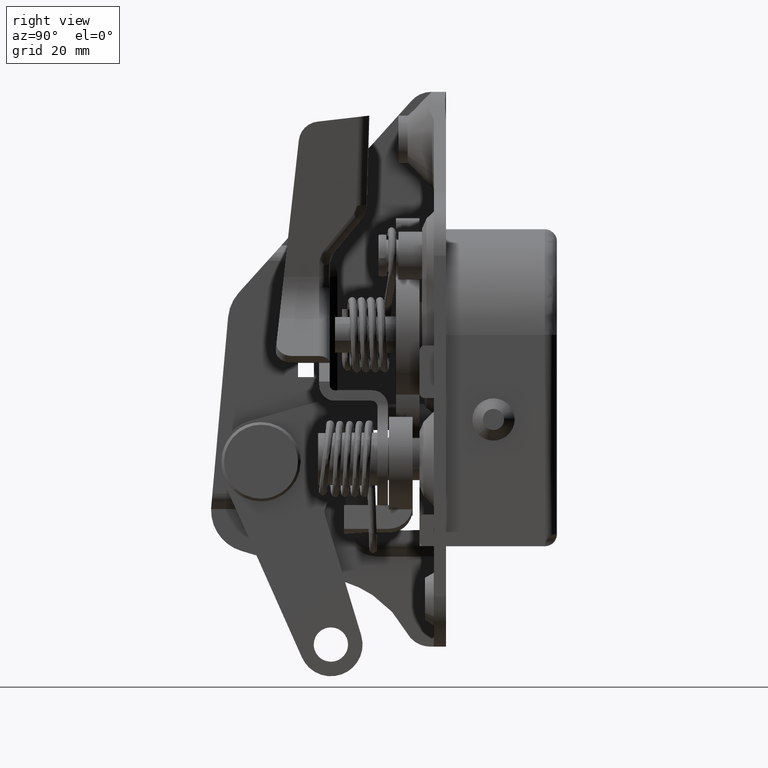
[diagram: clean part render]
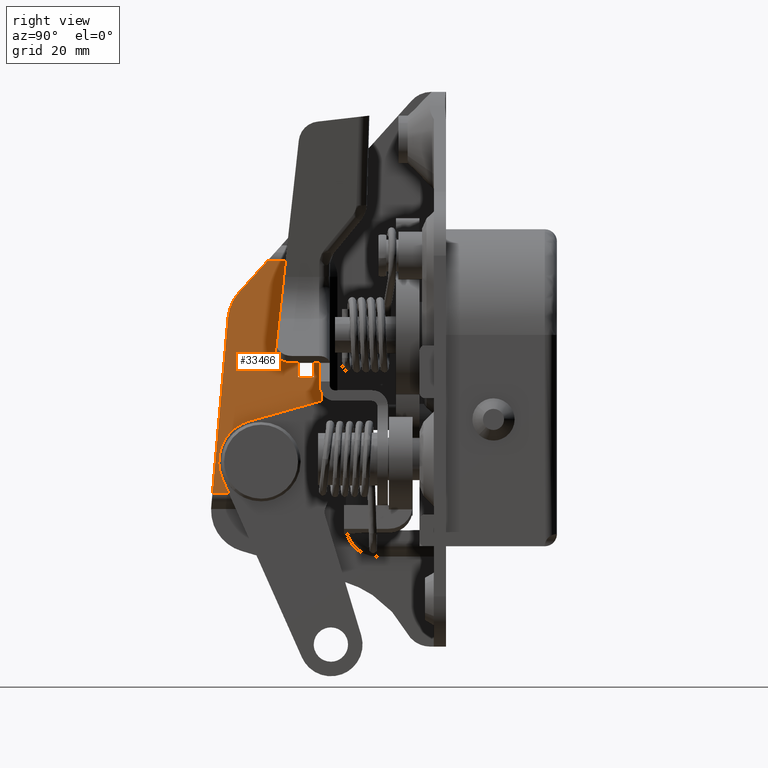
[diagram: same view with one face highlighted and labeled with its STEP entity id]
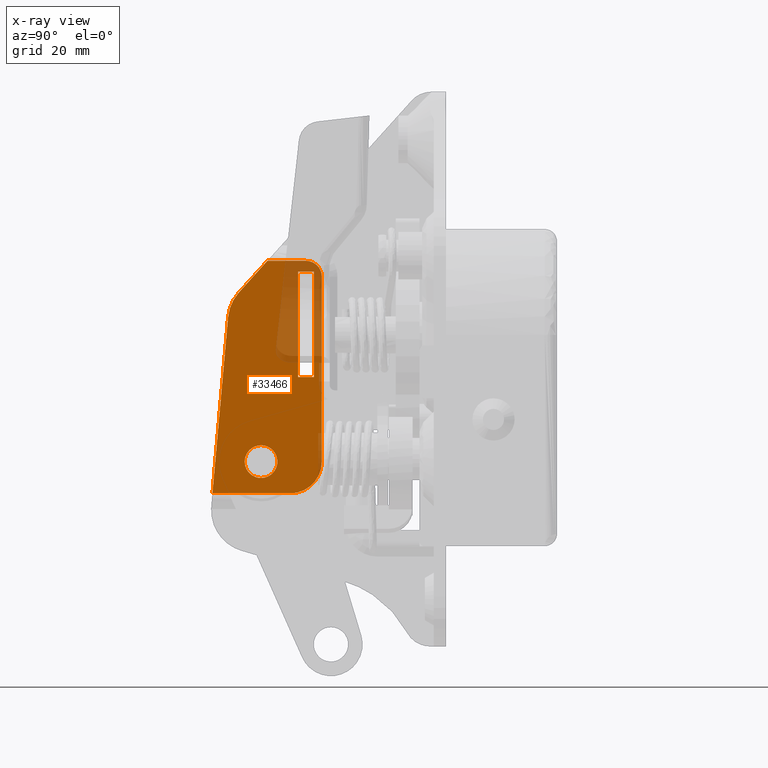
[diagram: x-ray of the same camera — body ghosted, the highlighted face saturated]
A machine part, right view. The second image highlights one B-rep face of the part: STEP entity #33466.
The next image is the same camera in x-ray: the body ghosted, the highlighted face saturated — about 15% of this face is hidden behind the body in this view.
In plain terms, the highlighted face is a freeform B-spline surface patch.
Its self-contained STEP definition (entity closure, byte-faithful):
#26775=CARTESIAN_POINT('',(4.299999999999860,0.0,3.100000000000000));
#26776=VERTEX_POINT('',#26775);
#26777=CARTESIAN_POINT('',(4.299999999993453,-2.221617631763561,2.162038961854671));
#26778=VERTEX_POINT('',#26777);
#26779=CARTESIAN_POINT('',(4.299999999999860,0.0,3.100000000000000));
#26780=CARTESIAN_POINT('',(4.299999999998756,-0.387076423366153,3.100381442423703));
#26781=CARTESIAN_POINT('',(4.299999999997020,-0.980199913207918,2.987358491877856));
#26782=CARTESIAN_POINT('',(4.299999999994924,-1.718290438299378,2.608221420082324));
#26783=CARTESIAN_POINT('',(4.299999999993906,-2.059699292661994,2.328483926916277));
#26784=CARTESIAN_POINT('',(4.299999999993453,-2.221617631763561,2.162038961854671));
#26785=B_SPLINE_CURVE_WITH_KNOTS('',3,(#26779,#26780,#26781,#26782,#26783,#26784),.UNSPECIFIED.,.F.,.U.,(4,1,1,4),(0.000000020293260,1.161060582805483,1.780292141663410,2.476928244312195),.UNSPECIFIED.);
#26786=EDGE_CURVE('',#26776,#26778,#26785,.T.);
#26846=CARTESIAN_POINT('',(4.300000000017257,-2.285560013593287,-2.094329974215530));
#26847=VERTEX_POINT('',#26846);
#26853=CARTESIAN_POINT('',(4.299999999999860,0.0,-3.100000000000000));
#26854=VERTEX_POINT('',#26853);
#26855=CARTESIAN_POINT('',(4.300000000017257,-2.285560013593287,-2.094329974215530));
#26856=CARTESIAN_POINT('',(4.300000000015198,-2.014537528808293,-2.390750969899118));
#26857=CARTESIAN_POINT('',(4.300000000011346,-1.508972197296024,-2.762140777135802));
#26858=CARTESIAN_POINT('',(4.300000000005156,-0.696010392123541,-3.046658639083731));
#26859=CARTESIAN_POINT('',(4.300000000001699,-0.240941391924423,-3.100051380337145));
#26860=CARTESIAN_POINT('',(4.299999999999860,0.0,-3.100000000000000));
#26861=B_SPLINE_CURVE_WITH_KNOTS('',3,(#26855,#26856,#26857,#26858,#26859,#26860),.UNSPECIFIED.,.F.,.U.,(4,1,1,4),(0.000000024546497,1.204720542868693,1.847237261707376,2.570069290431836),.UNSPECIFIED.);
#26862=EDGE_CURVE('',#26847,#26854,#26861,.T.);
#26864=CARTESIAN_POINT('',(4.299999999999860,3.099999999999537,0.000001694599756));
#26865=VERTEX_POINT('',#26864);
#26866=CARTESIAN_POINT('',(4.299999999999860,0.0,-3.100000000000000));
#26867=CARTESIAN_POINT('',(4.299999999999864,0.278986673213585,-3.100089965967427));
#26868=CARTESIAN_POINT('',(4.299999999999857,0.735444579930802,-3.037941316127577));
#26869=CARTESIAN_POINT('',(4.299999999999866,1.355820800187273,-2.807321876747603));
#26870=CARTESIAN_POINT('',(4.299999999999865,1.858576056279343,-2.505995032385809));
#26871=CARTESIAN_POINT('',(4.299999999999852,2.349554520247343,-2.061048590129082));
#26872=CARTESIAN_POINT('',(4.299999999999875,2.702663215842049,-1.559643599964355));
#26873=CARTESIAN_POINT('',(4.299999999999834,3.011841537300404,-0.862149879079770));
#26874=CARTESIAN_POINT('',(4.299999999999879,3.100285671755672,-0.355112203958085));
#26875=CARTESIAN_POINT('',(4.299999999999860,3.099999999999537,0.000001694599756));
#26876=B_SPLINE_CURVE_WITH_KNOTS('',3,(#26866,#26867,#26868,#26869,#26870,#26871,#26872,#26873,#26874,#26875),.UNSPECIFIED.,.F.,.U.,(4,1,1,1,1,1,1,4),(0.000000044647458,0.836946308917644,1.369578839649206,1.978279555034534,2.586966958162027,3.347832824490573,3.804374933490748,4.869591762565585),.UNSPECIFIED.);
#26877=EDGE_CURVE('',#26854,#26865,#26876,.T.);
#26879=CARTESIAN_POINT('',(4.299999999999860,3.099999999999537,0.000001694599756));
#26880=CARTESIAN_POINT('',(4.299999999999864,3.100448275662328,0.405886930059305));
#26881=CARTESIAN_POINT('',(4.299999999999854,2.978667274401713,1.014151457780510));
#26882=CARTESIAN_POINT('',(4.299999999999869,2.546193718578103,1.823353542824461));
#26883=CARTESIAN_POINT('',(4.299999999999840,2.064123536323794,2.355210484604011));
#26884=CARTESIAN_POINT('',(4.299999999999895,1.513118780123648,2.723235911701847));
#26885=CARTESIAN_POINT('',(4.299999999999813,0.862162123083817,3.011859304554319));
#26886=CARTESIAN_POINT('',(4.299999999999898,0.355108960585801,3.100278879815735));
#26887=CARTESIAN_POINT('',(4.299999999999860,0.0,3.100000000000000));
#26888=B_SPLINE_CURVE_WITH_KNOTS('',3,(#26879,#26880,#26881,#26882,#26883,#26884,#26885,#26886,#26887),.UNSPECIFIED.,.F.,.U.,(4,1,1,1,1,1,4),(0.000000046971425,1.217398276355130,1.826106752376056,2.739135808521953,3.347831511178693,3.804373440614459,4.869589852309050),.UNSPECIFIED.);
#26889=EDGE_CURVE('',#26865,#26776,#26888,.T.);
#26908=CARTESIAN_POINT('',(4.299999999999860,-3.099999999999537,-0.000001694599736));
#26909=VERTEX_POINT('',#26908);
#26910=CARTESIAN_POINT('',(4.299999999993453,-2.221617631763561,2.162038961854671));
#26911=CARTESIAN_POINT('',(4.299999999994039,-2.412892524153084,1.965621377772370));
#26912=CARTESIAN_POINT('',(4.299999999995159,-2.697723997683414,1.582125244291795));
#26913=CARTESIAN_POINT('',(4.299999999997363,-3.017146034095013,0.847280674425895));
#26914=CARTESIAN_POINT('',(4.299999999998875,-3.100190800589695,0.324028526565810));
#26915=CARTESIAN_POINT('',(4.299999999999860,-3.099999999999537,-0.000001694599736));
#26916=B_SPLINE_CURVE_WITH_KNOTS('',3,(#26910,#26911,#26912,#26913,#26914,#26915),.UNSPECIFIED.,.F.,.U.,(4,1,1,4),(0.000000031061596,0.822486579053400,1.420634753499920,2.392664033777836),.UNSPECIFIED.);
#26917=EDGE_CURVE('',#26778,#26909,#26916,.T.);
#26919=CARTESIAN_POINT('',(4.299999999999860,-3.099999999999537,-0.000001694599736));
#26920=CARTESIAN_POINT('',(4.300000000002850,-3.100257779061577,-0.359329960650999));
#26921=CARTESIAN_POINT('',(4.300000000009209,-2.965159400826793,-1.125604342997849));
#26922=CARTESIAN_POINT('',(4.300000000014761,-2.561045668548050,-1.794372189009928));
#26923=CARTESIAN_POINT('',(4.300000000017257,-2.285560013593287,-2.094329974215530));
#26924=B_SPLINE_CURVE_WITH_KNOTS('',3,(#26919,#26920,#26921,#26922,#26923),.UNSPECIFIED.,.F.,.U.,(4,1,4),(0.000000025546117,1.077905002254404,2.299521283408057),.UNSPECIFIED.);
#26925=EDGE_CURVE('',#26909,#26847,#26924,.T.);
#30920=CARTESIAN_POINT('',(4.299999999999884,5.500000000000000,-6.0));
#30921=VERTEX_POINT('',#30920);
#30933=CARTESIAN_POINT('',(4.299999999999860,-9.200361678384120,-6.0));
#30934=VERTEX_POINT('',#30933);
#30935=CARTESIAN_POINT('',(4.299999999999884,5.500000000000000,-6.0));
#30936=CARTESIAN_POINT('',(4.299999999999860,-9.200361678384120,-6.0));
#30937=QUASI_UNIFORM_CURVE('',1,(#30935,#30936),.UNSPECIFIED.,.F.,.U.);
#30938=EDGE_CURVE('',#30921,#30934,#30937,.T.);
#30975=CARTESIAN_POINT('',(4.299999999999884,11.500000000000121,8.489775E-014));
#30976=VERTEX_POINT('',#30975);
#30988=CARTESIAN_POINT('',(4.299999999999884,11.500000000000121,8.489775E-014));
#30989=CARTESIAN_POINT('',(4.299999999999899,11.500349079913169,-0.638169434081729));
#30990=CARTESIAN_POINT('',(4.299999999999877,11.322089662649830,-1.742430481386075));
#30991=CARTESIAN_POINT('',(4.299999999999890,10.738018682465430,-2.996944962639859));
#30992=CARTESIAN_POINT('',(4.299999999999869,10.037903737516039,-3.978195586660157));
#30993=CARTESIAN_POINT('',(4.299999999999940,9.290674378340020,-4.698395195201329));
#30994=CARTESIAN_POINT('',(4.299999999999831,8.279836034523529,-5.356030649877766));
#30995=CARTESIAN_POINT('',(4.299999999999894,7.070702053502707,-5.856898617924304));
#30996=CARTESIAN_POINT('',(4.299999999999892,6.064519478617343,-6.000218818854134));
#30997=CARTESIAN_POINT('',(4.299999999999884,5.500000000000000,-6.0));
#30998=B_SPLINE_CURVE_WITH_KNOTS('',3,(#30988,#30989,#30990,#30991,#30992,#30993,#30994,#30995,#30996,#30997),.UNSPECIFIED.,.F.,.U.,(4,1,1,1,1,1,1,4),(0.000000131915083,1.914414102034781,3.313420571129687,4.123402424440071,5.522333065944016,6.405929682239849,7.731326039566888,9.424837097258573),.UNSPECIFIED.);
#30999=EDGE_CURVE('',#30976,#30921,#30998,.T.);
#31033=CARTESIAN_POINT('',(4.299999999999884,11.500000000000121,35.0));
#31034=VERTEX_POINT('',#31033);
#31046=CARTESIAN_POINT('',(4.299999999999884,11.500000000000121,35.0));
#31047=CARTESIAN_POINT('',(4.299999999999884,11.500000000000121,8.489775E-014));
#31048=QUASI_UNIFORM_CURVE('',1,(#31046,#31047),.UNSPECIFIED.,.F.,.U.);
#31049=EDGE_CURVE('',#31034,#30976,#31048,.T.);
#31077=CARTESIAN_POINT('',(4.299999999999884,8.500000000000000,38.0));
#31078=VERTEX_POINT('',#31077);
#31090=CARTESIAN_POINT('',(4.299999999999884,8.500000000000000,38.0));
#31091=CARTESIAN_POINT('',(4.299999999999885,8.868203899293174,38.000286508035110));
#31092=CARTESIAN_POINT('',(4.299999999999882,9.432474175622913,37.894767403233693));
#31093=CARTESIAN_POINT('',(4.299999999999887,10.115347395034110,37.550873104103282));
#31094=CARTESIAN_POINT('',(4.299999999999899,10.581956596035960,37.186749624146969));
#31095=CARTESIAN_POINT('',(4.299999999999852,10.968571390085851,36.738570373021673));
#31096=CARTESIAN_POINT('',(4.299999999999929,11.235985884817920,36.266478434248192));
#31097=CARTESIAN_POINT('',(4.299999999999865,11.443271401810801,35.687174422276513));
#31098=CARTESIAN_POINT('',(4.299999999999873,11.500098130068929,35.269988114687337));
#31099=CARTESIAN_POINT('',(4.299999999999884,11.500000000000121,35.0));
#31100=B_SPLINE_CURVE_WITH_KNOTS('',3,(#31090,#31091,#31092,#31093,#31094,#31095,#31096,#31097,#31098,#31099),.UNSPECIFIED.,.F.,.U.,(4,1,1,1,1,1,1,4),(0.000000081610845,1.104493271838885,1.693580035721236,2.282628069109876,2.871657115111540,3.460746847536320,3.902559971862984,4.712507233004918),.UNSPECIFIED.);
#31101=EDGE_CURVE('',#31078,#31034,#31100,.T.);
#31136=CARTESIAN_POINT('',(4.299999999999860,1.200400000000164,38.0));
#31137=VERTEX_POINT('',#31136);
#31151=CARTESIAN_POINT('',(4.299999999999860,1.200400000000164,38.0));
#31152=CARTESIAN_POINT('',(4.299999999999884,8.500000000000000,38.0));
#31153=QUASI_UNIFORM_CURVE('',1,(#31151,#31152),.UNSPECIFIED.,.F.,.U.);
#31154=EDGE_CURVE('',#31137,#31078,#31153,.T.);
#32476=CARTESIAN_POINT('',(4.299999999999860,9.999999999999890,36.0));
#32477=VERTEX_POINT('',#32476);
#32483=CARTESIAN_POINT('',(4.299999999999884,7.0,36.0));
#32484=VERTEX_POINT('',#32483);
#32485=CARTESIAN_POINT('',(4.299999999999860,9.999999999999890,36.0));
#32486=CARTESIAN_POINT('',(4.299999999999884,7.0,36.0));
#32487=QUASI_UNIFORM_CURVE('',1,(#32485,#32486),.UNSPECIFIED.,.F.,.U.);
#32488=EDGE_CURVE('',#32477,#32484,#32487,.T.);
#32510=CARTESIAN_POINT('',(4.299999999999860,9.999999999999890,16.0));
#32511=VERTEX_POINT('',#32510);
#32517=CARTESIAN_POINT('',(4.299999999999860,9.999999999999890,16.0));
#32518=CARTESIAN_POINT('',(4.299999999999860,9.999999999999890,36.0));
#32519=QUASI_UNIFORM_CURVE('',1,(#32517,#32518),.UNSPECIFIED.,.F.,.U.);
#32520=EDGE_CURVE('',#32511,#32477,#32519,.T.);
#32538=CARTESIAN_POINT('',(4.299999999999860,7.0,16.0));
#32539=VERTEX_POINT('',#32538);
#32545=CARTESIAN_POINT('',(4.299999999999860,7.0,16.0));
#32546=CARTESIAN_POINT('',(4.299999999999860,9.999999999999890,16.0));
#32547=QUASI_UNIFORM_CURVE('',1,(#32545,#32546),.UNSPECIFIED.,.F.,.U.);
#32548=EDGE_CURVE('',#32539,#32511,#32547,.T.);
#32565=CARTESIAN_POINT('',(4.299999999999884,7.0,36.0));
#32566=CARTESIAN_POINT('',(4.299999999999860,7.0,16.0));
#32567=QUASI_UNIFORM_CURVE('',1,(#32565,#32566),.UNSPECIFIED.,.F.,.U.);
#32568=EDGE_CURVE('',#32484,#32539,#32567,.T.);
#33417=CARTESIAN_POINT('',(4.299999999999884,-10.234344315457720,-8.197799914719461));
#33418=CARTESIAN_POINT('',(4.299999999999884,12.533983562452010,-8.197799914719461));
#33419=CARTESIAN_POINT('',(4.299999999999884,-10.234344315457720,40.197801094891432));
#33420=CARTESIAN_POINT('',(4.299999999999884,12.533983562452010,40.197801094891432));
#33421=B_SPLINE_SURFACE_WITH_KNOTS('',1,1,((#33417,#33419),(#33418,#33420)),.UNSPECIFIED.,.F.,.F.,.U.,(2,2),(2,2),(0.0,22.768327877909730),(0.0,48.395601009610893),.UNSPECIFIED.);
#33422=ORIENTED_EDGE('',*,*,#30999,.F.);
#33423=ORIENTED_EDGE('',*,*,#31049,.F.);
#33424=ORIENTED_EDGE('',*,*,#31101,.F.);
#33425=ORIENTED_EDGE('',*,*,#31154,.F.);
#33426=CARTESIAN_POINT('',(4.299999999999860,-4.213687810655515,31.984346877049351));
#33427=VERTEX_POINT('',#33426);
#33428=CARTESIAN_POINT('',(4.299999999999860,-4.213687810655515,31.984346877049351));
#33429=CARTESIAN_POINT('',(4.299999999999860,1.200400000000164,38.0));
#33430=QUASI_UNIFORM_CURVE('',1,(#33428,#33429),.UNSPECIFIED.,.F.,.U.);
#33431=EDGE_CURVE('',#33427,#31137,#33430,.T.);
#33432=ORIENTED_EDGE('',*,*,#33431,.F.);
#33433=CARTESIAN_POINT('',(4.299999999999860,-6.235898771899469,27.341138506443450));
#33434=VERTEX_POINT('',#33433);
#33435=CARTESIAN_POINT('',(4.299999999999860,-6.235898771899469,27.341138506443450));
#33436=CARTESIAN_POINT('',(4.299999999999864,-6.179002980654843,27.982772834982260));
#33437=CARTESIAN_POINT('',(4.299999999999859,-5.953889356642542,29.040463684788151));
#33438=CARTESIAN_POINT('',(4.299999999999867,-5.265792651417026,30.620409779432240));
#33439=CARTESIAN_POINT('',(4.299999999999861,-4.644723407268237,31.505662591855490));
#33440=CARTESIAN_POINT('',(4.299999999999860,-4.213687810655515,31.984346877049351));
#33441=B_SPLINE_CURVE_WITH_KNOTS('',3,(#33435,#33436,#33437,#33438,#33439,#33440),.UNSPECIFIED.,.F.,.U.,(4,1,1,4),(0.000000020920051,1.932414197877548,3.220689417074909,5.153103594031575),.UNSPECIFIED.);
#33442=EDGE_CURVE('',#33434,#33427,#33441,.T.);
#33443=ORIENTED_EDGE('',*,*,#33442,.F.);
#33444=CARTESIAN_POINT('',(4.299999999999860,-9.200361678384120,-6.0));
#33445=CARTESIAN_POINT('',(4.299999999999860,-6.235898771899469,27.341138506443450));
#33446=QUASI_UNIFORM_CURVE('',1,(#33444,#33445),.UNSPECIFIED.,.F.,.U.);
#33447=EDGE_CURVE('',#30934,#33434,#33446,.T.);
#33448=ORIENTED_EDGE('',*,*,#33447,.F.);
#33449=ORIENTED_EDGE('',*,*,#30938,.F.);
#33450=EDGE_LOOP('',(#33422,#33423,#33424,#33425,#33432,#33443,#33448,#33449));
#33451=FACE_OUTER_BOUND('',#33450,.T.);
#33452=ORIENTED_EDGE('',*,*,#32488,.F.);
#33453=ORIENTED_EDGE('',*,*,#32520,.F.);
#33454=ORIENTED_EDGE('',*,*,#32548,.F.);
#33455=ORIENTED_EDGE('',*,*,#32568,.F.);
#33456=EDGE_LOOP('',(#33452,#33453,#33454,#33455));
#33457=FACE_BOUND('',#33456,.T.);
#33458=ORIENTED_EDGE('',*,*,#26877,.F.);
#33459=ORIENTED_EDGE('',*,*,#26862,.F.);
#33460=ORIENTED_EDGE('',*,*,#26925,.F.);
#33461=ORIENTED_EDGE('',*,*,#26917,.F.);
#33462=ORIENTED_EDGE('',*,*,#26786,.F.);
#33463=ORIENTED_EDGE('',*,*,#26889,.F.);
#33464=EDGE_LOOP('',(#33458,#33459,#33460,#33461,#33462,#33463));
#33465=FACE_BOUND('',#33464,.T.);
#33466=ADVANCED_FACE('',(#33451,#33457,#33465),#33421,.T.);